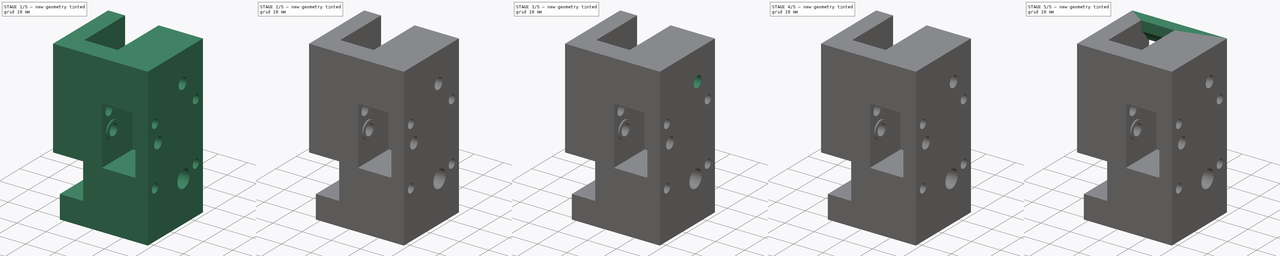
[diagram: build sequence overview — one tinted view per stage of 5, left to right]
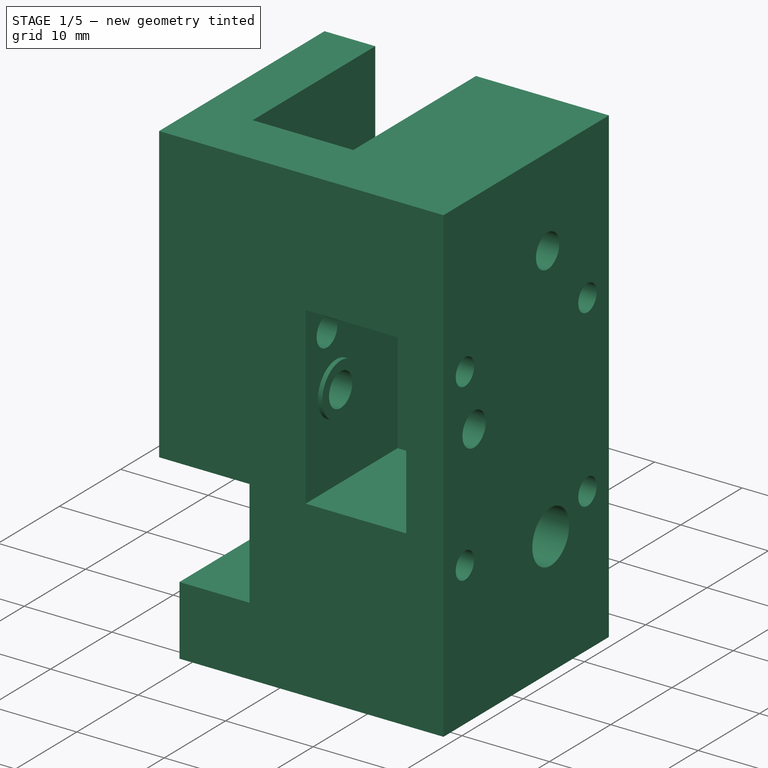
[diagram: stage 1 of 5 — iso view after this stage's code; geometry added in this stage tinted green]
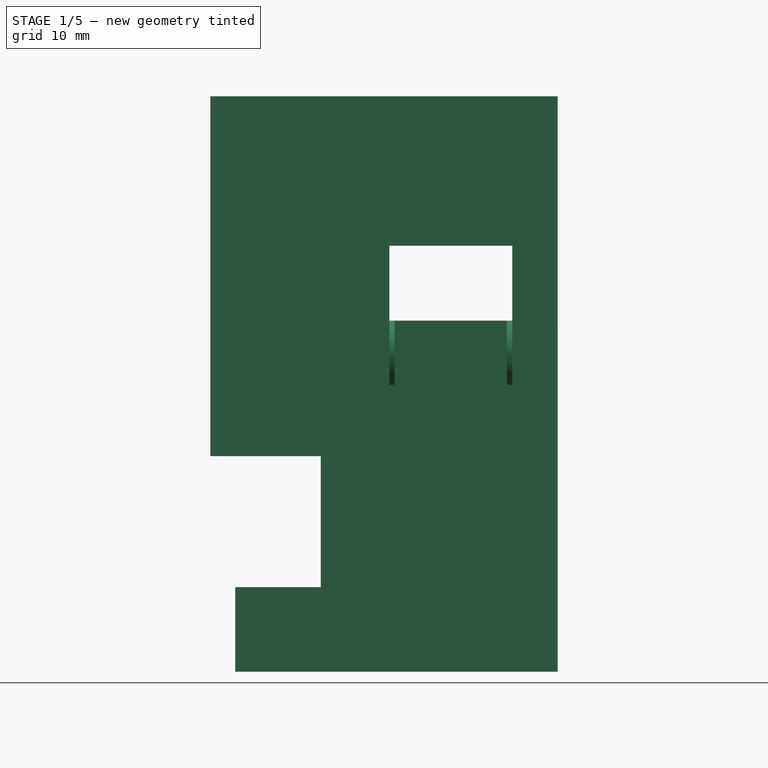
[diagram: stage 1 of 5 — front view after this stage's code; geometry added in this stage tinted green]
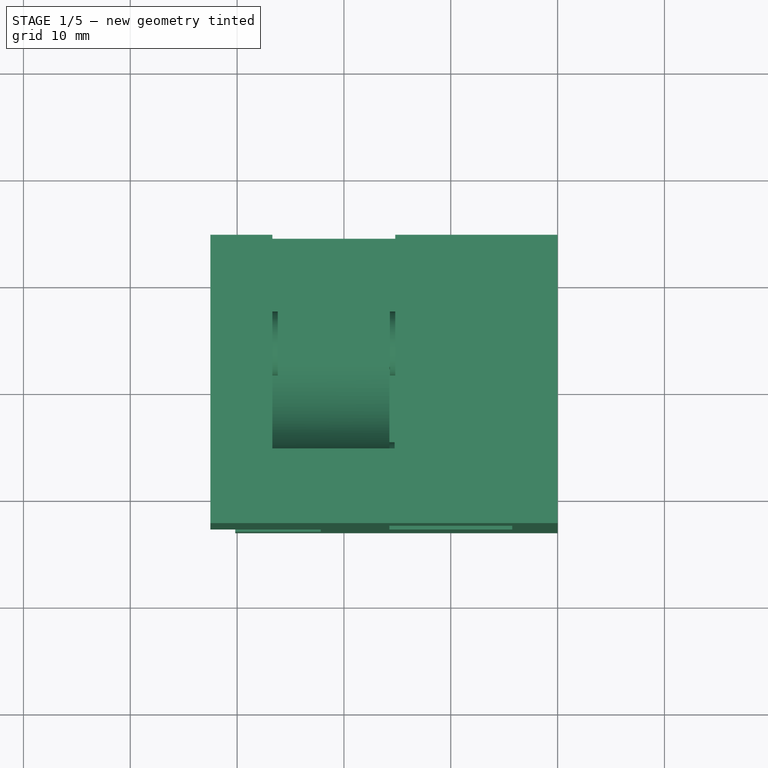
[diagram: stage 1 of 5 — top view after this stage's code; geometry added in this stage tinted green]
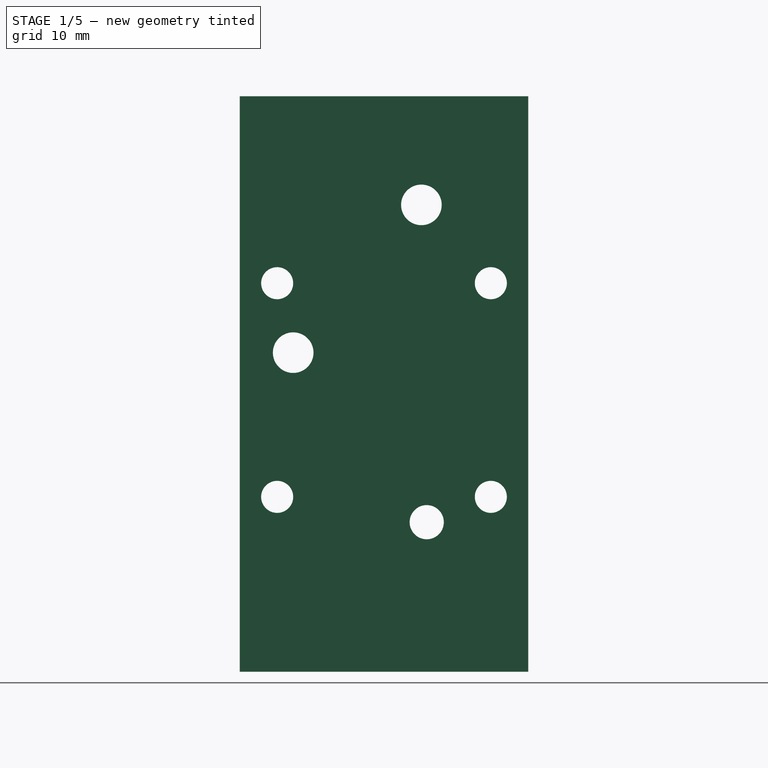
[diagram: stage 1 of 5 — right view after this stage's code; geometry added in this stage tinted green]
FCSTD DOCUMENT  (FreeCAD 1.0R38641 +468 (Git))
Label: k1_joint_right
License: All rights reserved
LicenseURL: https://en.wikipedia.org/wiki/All_rights_reserved
objects: Sketcher::SketchObject×8, PartDesign::Pad×7, PartDesign::Pocket×6, App::Link×3, Part::Feature×1, PartDesign::FeatureBase×1, PartDesign::Line×1, PartDesign::Chamfer×1, PartDesign::Body×1, App::Part×1
note: 63 computed .brp shape members not serialized (recipe doc carries the construction recipe); baked Part::Feature solids carry a one-line shape summary decoded from their .brp
EXTERNAL_REF file=cad_powge_pulley.FCStd obj=Part
EXTERNAL_REF file=cad_mgn12h_block.FCStd obj=Body

FEATURE [Part::Feature] Part__Feature  label="step"
  shape: bbox 32.5 x 27 x 53.87 mm, 57 faces (baked)
FEATURE [PartDesign::FeatureBase] BaseFeature
  BaseFeature = -> Part__Feature
  Suppressed = false
FEATURE [PartDesign::Body] Body  label="k1_joint_right"
  AllowCompound = false
  BaseFeature = -> Part__Feature
  Group = -> [BaseFeature,DatumLine,Sketch,Pad,Pocket,Pocket001,Pocket002,Pad001,Pad002,Sketch001,Pocket003,Sketch002,Pad003,Sketch003,Pad004,Sketch004,Pocket004,Chamfer,Sketch005,Pocket005,Sketch006,Pad005,Sketch007,Pad006]
  Origin = -> Origin
  Tip = -> Pad006
FEATURE [App::Link] Link  label="cad_powge_pulley_top_link"
  LinkPlacement = pos=(14.75,-18,24) rot=(0,1,0;1.5708rad)
  LinkedObject = -> <external cad_powge_pulley.FCStd>#Part
  Placement = pos=(14.75,-18,24) rot=(0,1,0;1.5708rad)
FEATURE [App::Link] Link001  label="cad_powge_pulley_bottom_link"
  LinkPlacement = pos=(3.8,-4.505,37.83) rot=(0,1,0;1.5708rad)
  LinkedObject = -> <external cad_powge_pulley.FCStd>#Part
  Placement = pos=(3.8,-4.505,37.83) rot=(0,1,0;1.5708rad)
FEATURE [App::Link] Link002  label="mgn12_block_link"
  LinkPlacement = pos=(29.9999,-9.5,43.2) rot=(0,1,0;1.5708rad)
  LinkedObject = -> <external cad_mgn12h_block.FCStd>#Body
  Placement = pos=(29.9999,-9.5,43.2) rot=(0,1,0;1.5708rad)
FEATURE [App::Part] Part  label="k1_joint_right_part"
  Group = -> [Part__Feature,Body,Link,Link001,Link002]
  Origin = -> Origin001
  Placement = pos=(0,0,0) rot=(0.57735,-0.57735,0.57735;2.0944rad)

RESOLVED EXTERNAL PARTS (link-assembly join: the EXTERNAL_REF files above that resolve inside this repo's crawl, each included once):
---- part cad_mgn12h_block.FCStd = doc fcstd_671538b6926e ----
FCSTD DOCUMENT  (FreeCAD 1.0R38641 +468 (Git))
Label: cad_mgn12h_block
License: All rights reserved
LicenseURL: https://en.wikipedia.org/wiki/All_rights_reserved
objects: Sketcher::SketchObject×3, PartDesign::Pocket×2, PartDesign::Pad×1, PartDesign::Body×1
note: 16 computed .brp shape members not serialized (recipe doc carries the construction recipe); baked Part::Feature solids carry a one-line shape summary decoded from their .brp

FEATURE [Sketcher::SketchObject] Sketch
  ArcFitTolerance = 0
  AttachmentSupport = -> [YZ_Plane]
  FullyConstrained = true
  MakeInternals = false
  MapMode = 5
  Placement = pos=(0,0,0) rot=(0.57735,0.57735,0.57735;2.0944rad)
  sketch-geometry (4):
    g0: LineSegment StartX=13.5 StartY=0 StartZ=0 EndX=-13.5 EndY=-1e-16 EndZ=0
    g1: LineSegment StartX=-13.5 StartY=-1e-16 StartZ=0 EndX=-13.5 EndY=10 EndZ=0
    g2: LineSegment StartX=-13.5 StartY=10 StartZ=0 EndX=13.5 EndY=10 EndZ=0
    g3: LineSegment StartX=13.5 StartY=10 StartZ=0 EndX=13.5 EndY=0 EndZ=0
  constraints (11):
    c: Coincident(g0,g1)
    c: Coincident(g1,g2)
    c: Coincident(g2,g3)
    c: Coincident(g3,g0)
    c: Horizontal(g2)
    c: Vertical(g1)
    c: Vertical(g3)
    c: PointOnObject(g0,g-1)
    c: Symmetric(g0,g0,g-2)
    c: Distance(g2) = 27
    c: Distance(g1) = 10
FEATURE [PartDesign::Pad] Pad
  Direction = (1,0,0)
  Length = 45.4
  Length2 = 10
  Placement = pos=(0,0,0) rot=(1,1,1;2.0944rad)
  Profile = -> Sketch
  ReferenceAxis = -> Sketch [N_Axis]
  Suppressed = false
  Type = 0
FEATURE [Sketcher::SketchObject] Sketch001
  ArcFitTolerance = 0
  AttachmentSupport = -> [Pad]
  FullyConstrained = true
  MakeInternals = false
  MapMode = 5
  Placement = pos=(0,0,0) rot=(0.707107,0.707107,0;3.14159rad)
  sketch-geometry (8):
    g0: LineSegment [constr] StartX=-10 StartY=32.7 StartZ=0 EndX=10 EndY=32.7 EndZ=0
    g1: LineSegment [constr] StartX=10 StartY=32.7 StartZ=0 EndX=10 EndY=12.7 EndZ=0
    g2: LineSegment [constr] StartX=10 StartY=12.7 StartZ=0 EndX=-10 EndY=12.7 EndZ=0
    g3: LineSegment [constr] StartX=-10 StartY=12.7 StartZ=0 EndX=-10 EndY=32.7 EndZ=0
    g4: Circle CenterX=-10 CenterY=32.7 CenterZ=0 NormalX=0 NormalY=0 NormalZ=1 AngleXU=0 Radius=1.5
    g5: Circle CenterX=10 CenterY=32.7 CenterZ=0 NormalX=0 NormalY=0 NormalZ=1 AngleXU=0 Radius=1.5
    g6: Circle CenterX=10 CenterY=12.7 CenterZ=0 NormalX=0 NormalY=0 NormalZ=1 AngleXU=0 Radius=1.5
    g7: Circle CenterX=-10 CenterY=12.7 CenterZ=0 NormalX=0 NormalY=0 NormalZ=1 AngleXU=0 Radius=1.5
  constraints (19):
    c: Coincident(g0,g1)
    c: Coincident(g1,g2)
    c: Coincident(g2,g3)
    c: Coincident(g3,g0)
    c: Horizontal(g2)
    c: Vertical(g1)
    c: Vertical(g3)
    c: Symmetric(g0,g0,g-2)
    c: Distance(g0) = 20
    c: Distance(g1) = 20
    c: DistanceY(g-1,g2) = 12.7
    c: Coincident(g4,g0)
    c: Coincident(g5,g0)
    c: Coincident(g6,g1)
    c: Coincident(g7,g2)
    c: Equal(g7,g6)
    c: Equal(g6,g5)
    c: Equal(g5,g4)
    c: Radius(g4) = 1.5
FEATURE [PartDesign::Pocket] Pocket
  BaseFeature = -> Pad
  Direction = (0,0,1)
  Length = 5
  Length2 = 5
  Placement = pos=(0,0,0) rot=(1,1,1;2.0944rad)
  Profile = -> Sketch001
  ReferenceAxis = -> Sketch001 [N_Axis]
  Suppressed = false
  Type = 0
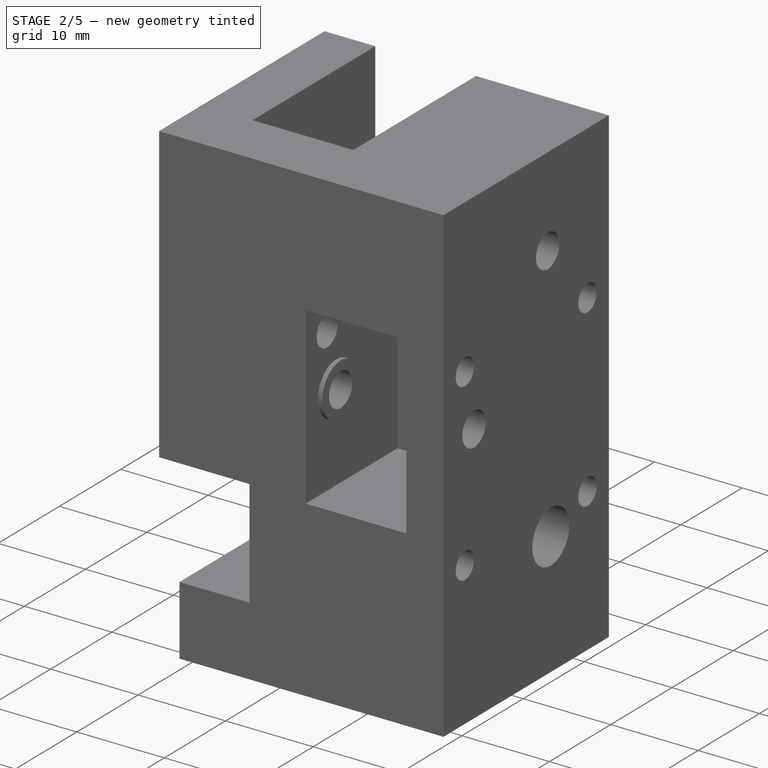
[diagram: stage 2 of 5 — iso view after this stage's code; geometry added in this stage tinted green]
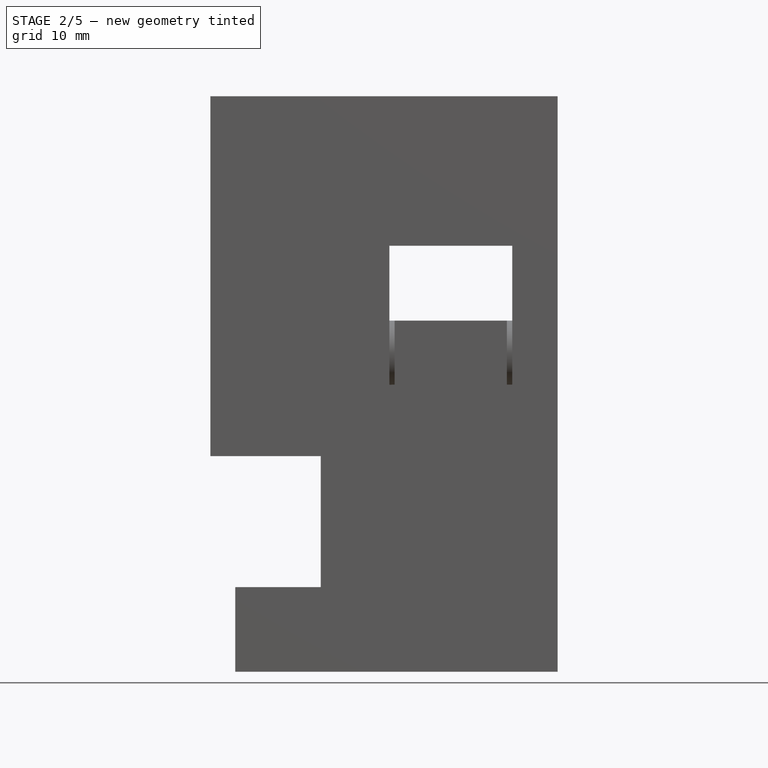
[diagram: stage 2 of 5 — front view after this stage's code; geometry added in this stage tinted green]
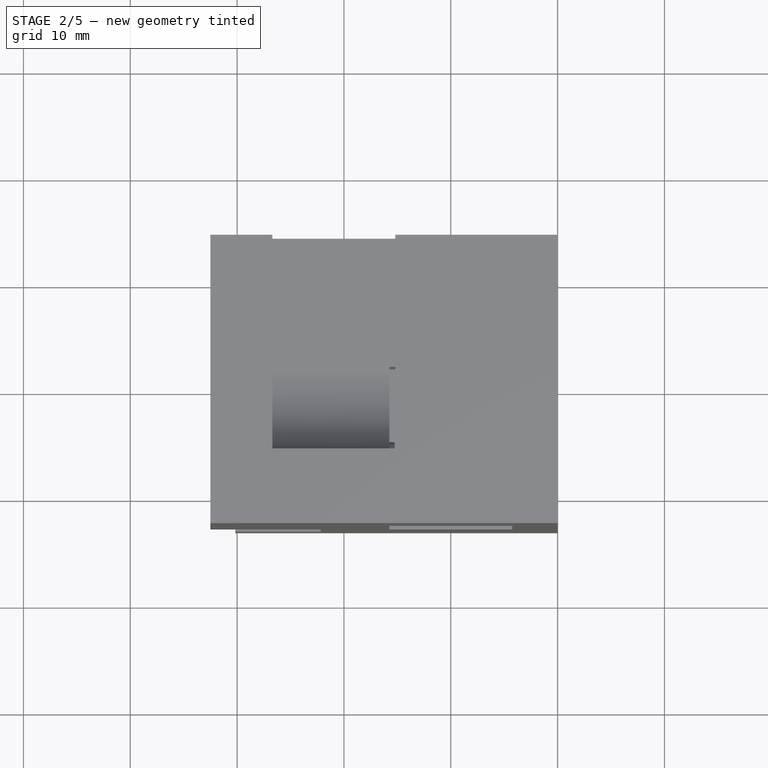
[diagram: stage 2 of 5 — top view after this stage's code; geometry added in this stage tinted green]
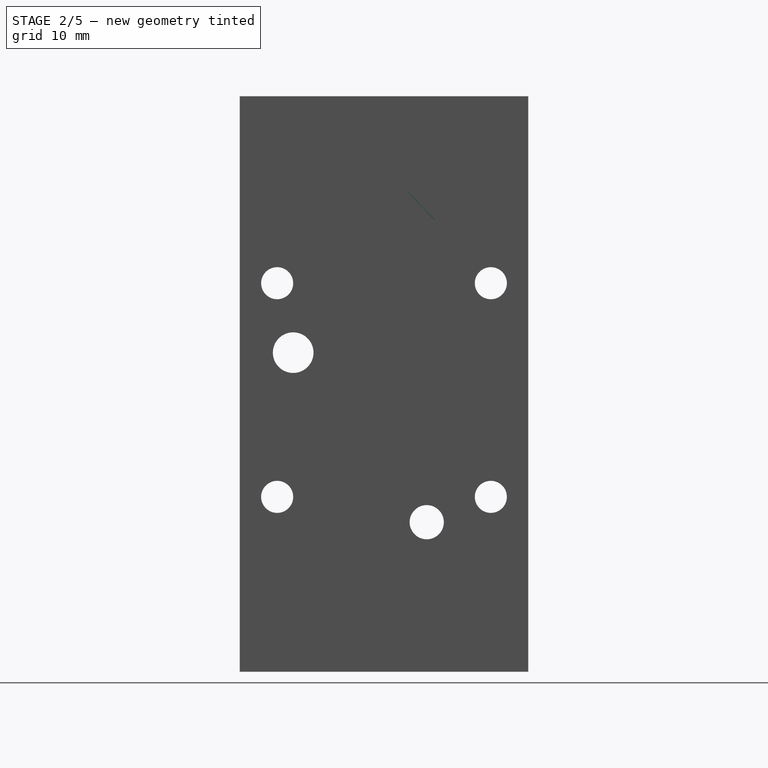
[diagram: stage 2 of 5 — right view after this stage's code; geometry added in this stage tinted green]
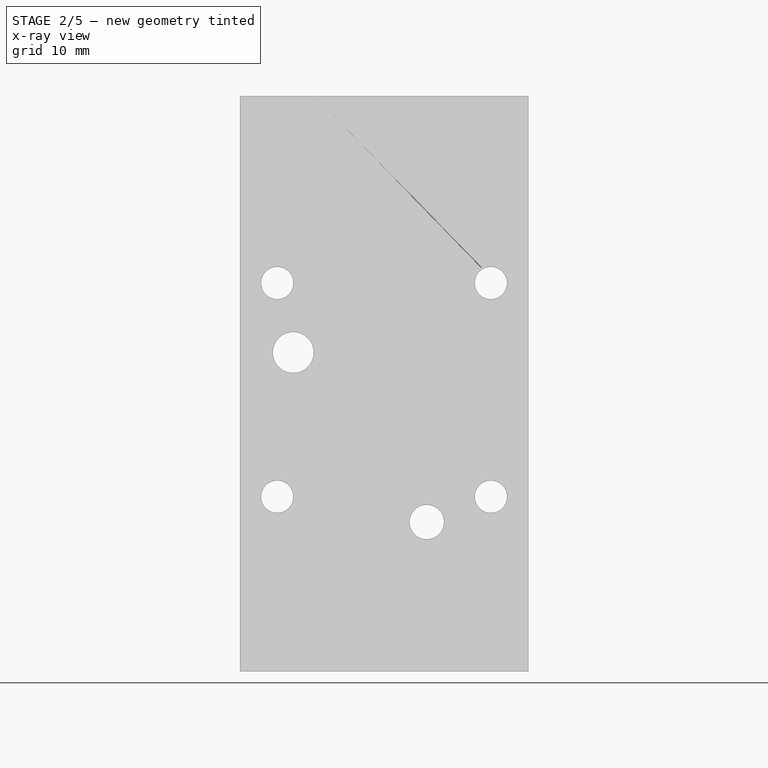
[diagram: stage 2 of 5 — x-ray composite at the right view; earlier geometry ghosted, this stage's added geometry solid]
FEATURE [PartDesign::Line] DatumLine  label="front_idler_axis"
  AttacherType = Attacher::AttachEngineLine
  AttachmentOffset = pos=(-1.495,0,0) rot=(0,0,1;0rad)
  AttachmentSupport = -> [BaseFeature]
  Length = 20
  MapMode = 19
  Placement = pos=(29.9999,-4.505,37.83) rot=(0.57735,-0.57735,-0.57735;2.0944rad)
  ResizeMode = 0
FEATURE [Sketcher::SketchObject] Sketch
  ArcFitTolerance = 1e-06
  AttachmentSupport = -> [BaseFeature]
  ExternalGeometry = -> [BaseFeature]
  FullyConstrained = true
  MakeInternals = false
  MapMode = 5
  Placement = pos=(3.3,0,0) rot=(0.57735,0.57735,0.57735;2.0944rad)
  sketch-geometry (6):
    g0: LineSegment StartX=-17 StartY=48 StartZ=0 EndX=-16 EndY=48 EndZ=0
    g1: LineSegment StartX=-17 StartY=48 StartZ=0 EndX=-17 EndY=35 EndZ=0
    g2: LineSegment StartX=-9 StartY=27 StartZ=0 EndX=-8 EndY=27 EndZ=0
    g3: LineSegment StartX=-16 StartY=48 StartZ=0 EndX=-16 EndY=35 EndZ=0
    g4: ArcOfCircle CenterX=-9 CenterY=35 CenterZ=0 NormalX=0 NormalY=0 NormalZ=1 AngleXU=0 Radius=8 StartAngle=3.14159 EndAngle=4.71239
    g5: ArcOfCircle CenterX=-8 CenterY=35 CenterZ=0 NormalX=0 NormalY=0 NormalZ=1 AngleXU=0 Radius=8 StartAngle=3.14159 EndAngle=4.71239
  constraints (15):
    c: Coincident(g0,g-4)
    c: PointOnObject(g0,g-4)
    c: Coincident(g3,g0)
    c: Vertical(g3)
    c: PointOnObject(g2,g-6)
    c: Distance(g0,g0) = 1
    c: Coincident(g2,g-6)
    c: Equal(g1,g3)
    c: Coincident(g1,g-5)
    c: Coincident(g4,g1)
    c: Coincident(g4,g2)
    c: Radius(g4) = 8
    c: Tangent(g5,g2) = -1.5708
    c: Tangent(g5,g3) = -1.5708
    c: Coincident(g0,g1)
FEATURE [PartDesign::Pad] Pad
  BaseFeature = -> BaseFeature
  Direction = (1,0,0)
  Length = 10
  Length2 = 10
  Profile = -> Sketch
  ReferenceAxis = -> Sketch [N_Axis]
  Refine = true
  Suppressed = false
  Type = 3
  UpToFace = -> BaseFeature [Face15]
FEATURE [PartDesign::Pocket] Pocket
  BaseFeature = -> Pad
  Direction = (-1,0,0)
  Length = 0
  Length2 = 5
  Profile = -> Pad [Face49]
  Refine = true
  Suppressed = false
  Type = 3
  UpToFace = -> Pad [Face23]
FEATURE [PartDesign::Pocket] Pocket001
  BaseFeature = -> Pocket
  Direction = (1,0,0)
  Length = 0
  Length2 = 5
  Profile = -> Pocket [Face29]
  Refine = true
  Suppressed = false
  Type = 3
  UpToFace = -> Pocket [Face15]
FEATURE [PartDesign::Pocket] Pocket002
  BaseFeature = -> Pocket001
  Direction = (-1,0,0)
  Length = 0
  Length2 = 5
  Profile = -> Pocket001 [Face46]
  Refine = true
  Suppressed = false
  Type = 3
  UpToFace = -> Pocket001 [Face16]
FEATURE [PartDesign::Pad] Pad001
  BaseFeature = -> Pocket002
  Direction = (1,0,0)
  Length = 10
  Length2 = 10
  Profile = -> Pocket002 [Edge74]
  Refine = true
  Suppressed = false
  Type = 3
  UpToFace = -> Pocket002 [Face53]
FEATURE [Sketcher::SketchObject] Sketch002
  ArcFitTolerance = 0
  AttachmentSupport = -> [Pocket]
  ExternalGeometry = -> [Pocket]
  FullyConstrained = true
  MakeInternals = false
  MapMode = 5
  Placement = pos=(0,0,0) rot=(0.57735,0.57735,-0.57735;4.18879rad)
  sketch-geometry (4):
    g0: LineSegment StartX=-6 StartY=-10 StartZ=0 EndX=6 EndY=-10 EndZ=0
    g1: LineSegment StartX=6 StartY=-10 StartZ=0 EndX=6 EndY=-5 EndZ=0
    g2: LineSegment StartX=6 StartY=-5 StartZ=0 EndX=-6 EndY=-5 EndZ=0
    g3: LineSegment StartX=-6 StartY=-5 StartZ=0 EndX=-6 EndY=-10 EndZ=0
  constraints (11):
    c: Coincident(g0,g1)
    c: Coincident(g1,g2)
    c: Coincident(g2,g3)
    c: Coincident(g3,g0)
    c: Horizontal(g0)
    c: Vertical(g1)
    c: Vertical(g3)
    c: PointOnObject(g0,g-3)
    c: Symmetric(g2,g1,g-2)
    c: Distance(g1) = 5
    c: Distance(g2) = 12
FEATURE [PartDesign::Pocket] Pocket001
  BaseFeature = -> Pocket
  Direction = (1,0,0)
  Length = 5
  Length2 = 5
  Placement = pos=(0,0,0) rot=(1,1,1;2.0944rad)
  Profile = -> Sketch002
  ReferenceAxis = -> Sketch002 [N_Axis]
  Suppressed = false
  Type = 1
FEATURE [PartDesign::Body] Body  label="mgn12h_block"
  AllowCompound = false
  Group = -> [Sketch,Pad,Sketch001,Pocket,Sketch002,Pocket001]
  Origin = -> Origin
  Placement = pos=(0,13.5,0) rot=(0,0,1;0rad)
  Tip = -> Pocket001
---- part cad_powge_pulley.FCStd = doc fcstd_d49da9a9e340 ----
FCSTD DOCUMENT  (FreeCAD 1.0R38641 +468 (Git))
Label: cad_powge_pulley
License: All rights reserved
LicenseURL: https://en.wikipedia.org/wiki/All_rights_reserved
objects: Sketcher::SketchObject×1, PartDesign::Revolution×1, PartDesign::Body×1, App::Part×1
note: 6 computed .brp shape members not serialized (recipe doc carries the construction recipe); baked Part::Feature solids carry a one-line shape summary decoded from their .brp

FEATURE [Sketcher::SketchObject] Sketch
  ArcFitTolerance = 1e-06
  AttachmentSupport = -> [XZ_Plane]
  FullyConstrained = true
  MakeInternals = false
  MapMode = 5
  Placement = pos=(0,0,0) rot=(1,0,0;1.5708rad)
  sketch-geometry (8):
    g0: LineSegment StartX=6.1 StartY=9.3 StartZ=0 EndX=6.1 EndY=1.2 EndZ=0
    g1: LineSegment StartX=6.1 StartY=1.2 StartZ=0 EndX=8 EndY=1.2 EndZ=0
    g2: LineSegment StartX=8 StartY=1.2 StartZ=0 EndX=8 EndY=0 EndZ=0
    g3: LineSegment StartX=8 StartY=0 StartZ=0 EndX=2 EndY=0 EndZ=0
    g4: LineSegment StartX=2 StartY=0 StartZ=0 EndX=2 EndY=10.5 EndZ=0
    g5: LineSegment StartX=2 StartY=10.5 StartZ=0 EndX=8 EndY=10.5 EndZ=0
    g6: LineSegment StartX=8 StartY=10.5 StartZ=0 EndX=8 EndY=9.3 EndZ=0
    g7: LineSegment StartX=8 StartY=9.3 StartZ=0 EndX=6.1 EndY=9.3 EndZ=0
  constraints (24):
    c: Vertical(g0)
    c: Coincident(g1,g0)
    c: Horizontal(g1)
    c: Coincident(g2,g1)
    c: PointOnObject(g2,g-1)
    c: Vertical(g2)
    c: Coincident(g3,g2)
    c: PointOnObject(g3,g-1)
    c: Coincident(g4,g3)
    c: Vertical(g4)
    c: Coincident(g5,g4)
    c: Horizontal(g5)
    c: Coincident(g6,g5)
    c: Vertical(g6)
    c: Coincident(g7,g6)
    c: Horizontal(g7)
    c: Coincident(g0,g7)
    c: Equal(g5,g3)
    c: Equal(g6,g2)
    c: Distance(g4,g-2) = 2
    c: Distance(g5,g-2) = 8
    c: DistanceY(g0,g0) = 8.1
    c: DistanceY(g4,g4) = 10.5
    c: Distance(g0,g-2) = 6.1
FEATURE [PartDesign::Revolution] Revolution
  Angle = 360
  Angle2 = 60
  Axis = (0,2e-16,1)
  Base = (0,0,0)
  Placement = pos=(0,0,0) rot=(1,0,0;1.5708rad)
  Profile = -> Sketch
  ReferenceAxis = -> Sketch [V_Axis]
  Refine = true
  Reversed = true
  Suppressed = false
  Type = 0
FEATURE [PartDesign::Body] Body  label="powge_pulley"
  AllowCompound = false
  Group = -> [Sketch,Revolution]
  Origin = -> Origin
  Tip = -> Revolution
FEATURE [App::Part] Part  label="powge_pulley_part"
  Group = -> [Body]
  Origin = -> Origin001
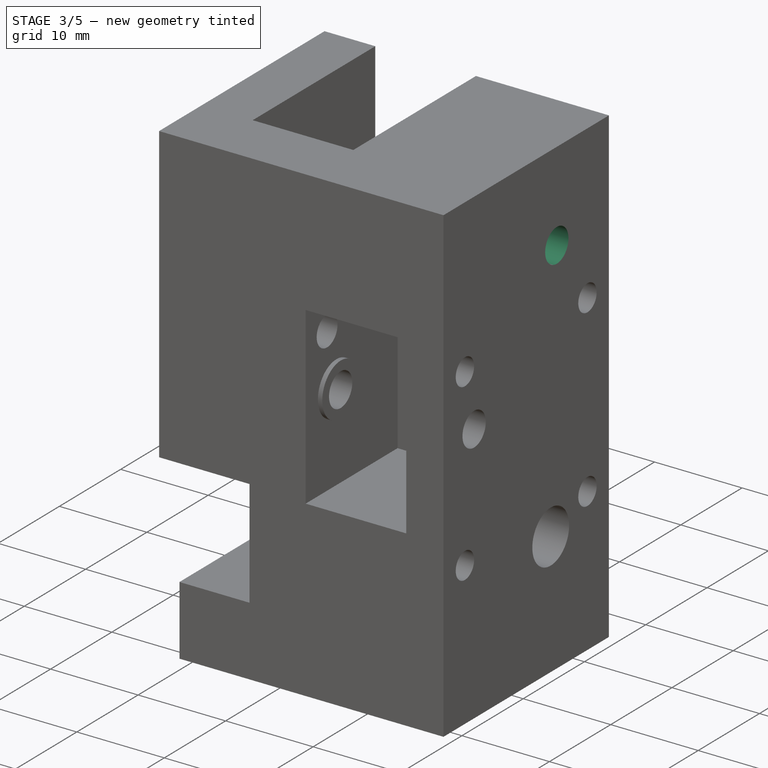
[diagram: stage 3 of 5 — iso view after this stage's code; geometry added in this stage tinted green]
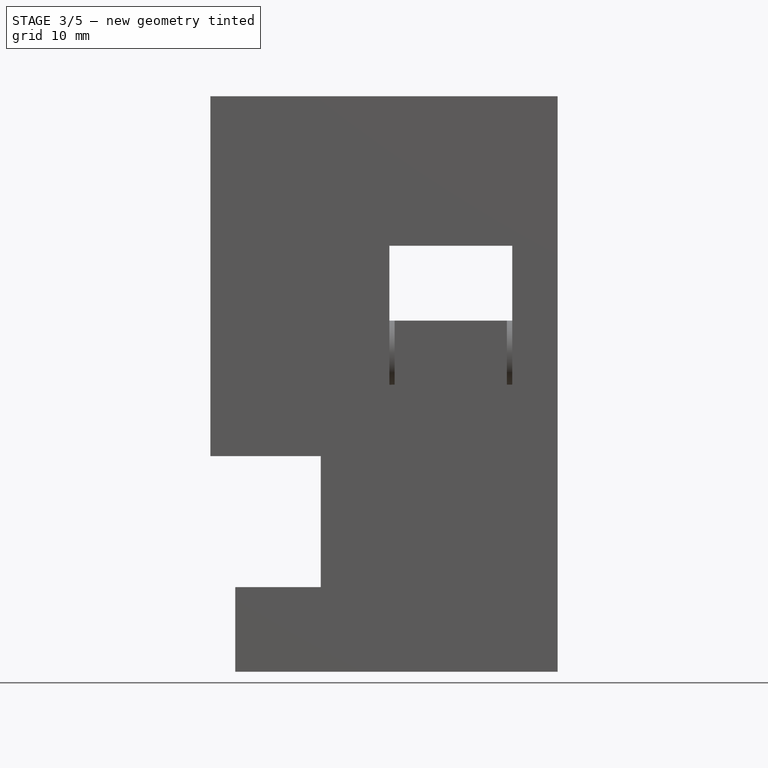
[diagram: stage 3 of 5 — front view after this stage's code; geometry added in this stage tinted green]
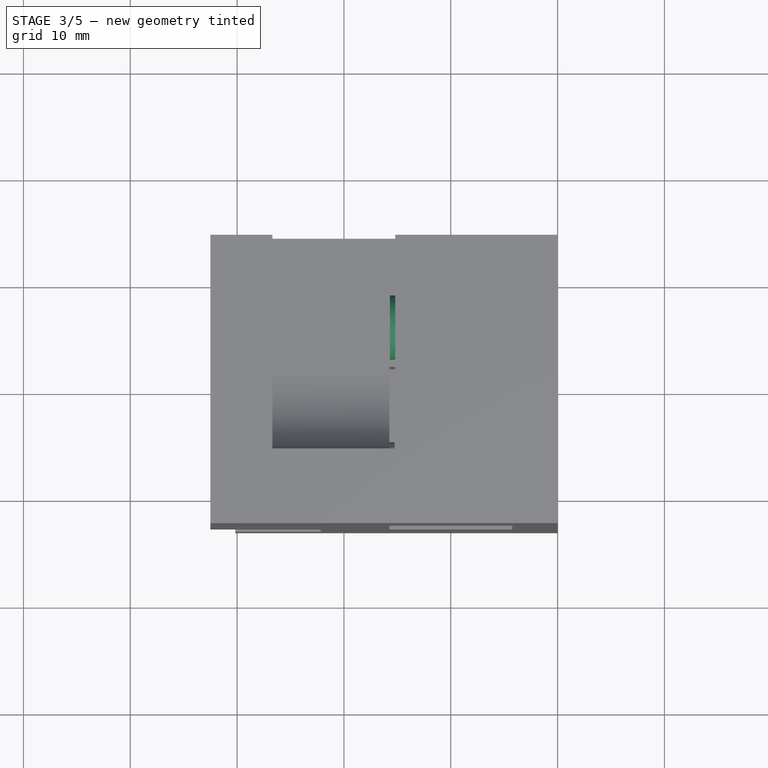
[diagram: stage 3 of 5 — top view after this stage's code; geometry added in this stage tinted green]
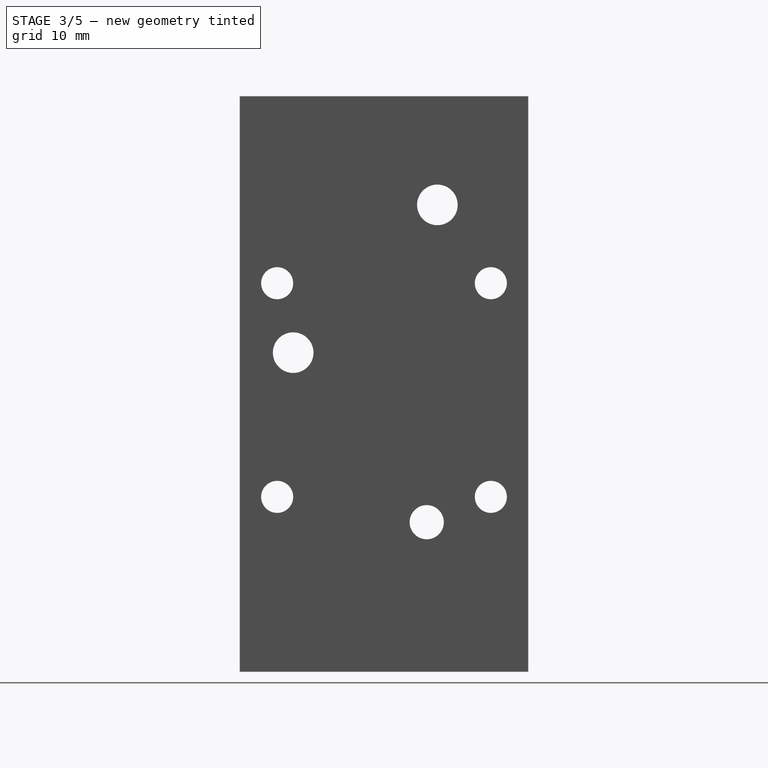
[diagram: stage 3 of 5 — right view after this stage's code; geometry added in this stage tinted green]
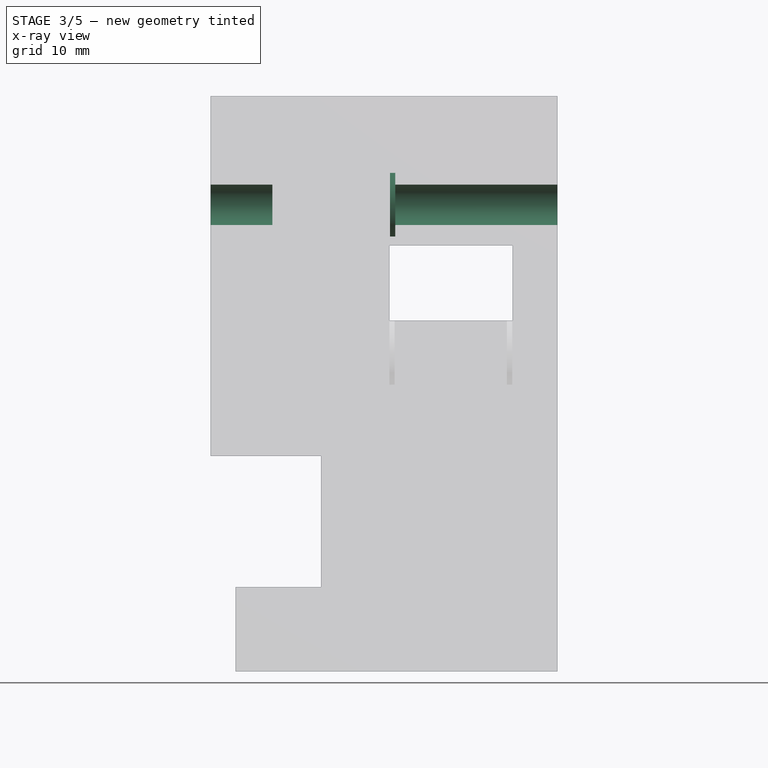
[diagram: stage 3 of 5 — x-ray composite at the front view; earlier geometry ghosted, this stage's added geometry solid]
FEATURE [PartDesign::Pad] Pad002
  BaseFeature = -> Pad001
  Direction = (1,0,0)
  Length = 10
  Length2 = 10
  Profile = -> Pad001 [Edge52]
  Refine = true
  Suppressed = false
  Type = 3
  UpToFace = -> Pad001 [Face10]
FEATURE [Sketcher::SketchObject] Sketch001
  ArcFitTolerance = 1e-06
  AttachmentSupport = -> [Pad002]
  ExternalGeometry = -> [DatumLine]
  FullyConstrained = true
  MakeInternals = false
  MapMode = 5
  Placement = pos=(-2.5,0,0) rot=(0.57735,-0.57735,-0.57735;2.0944rad)
  sketch-geometry (1):
    g0: Circle CenterX=4.505 CenterY=37.83 CenterZ=0 NormalX=0 NormalY=0 NormalZ=1 AngleXU=0 Radius=1.9
  constraints (2):
    c: Coincident(g0,g-3)
    c: Diameter(g0) = 3.8
FEATURE [PartDesign::Pocket] Pocket003
  BaseFeature = -> Pad002
  Direction = (1,0,0)
  Length = 5
  Length2 = 5
  Profile = -> Sketch001
  ReferenceAxis = -> Sketch001 [N_Axis]
  Refine = true
  Suppressed = false
  Type = 1
FEATURE [Sketcher::SketchObject] Sketch002
  ArcFitTolerance = 1e-06
  AttachmentSupport = -> [Pocket003]
  ExternalGeometry = -> [DatumLine]
  FullyConstrained = true
  MakeInternals = false
  MapMode = 5
  Placement = pos=(14.8,0,0) rot=(0.57735,-0.57735,-0.57735;2.0944rad)
  sketch-geometry (2):
    g0: Circle CenterX=4.505 CenterY=37.83 CenterZ=0 NormalX=0 NormalY=0 NormalZ=1 AngleXU=0 Radius=1.9
    g1: Circle CenterX=4.505 CenterY=37.83 CenterZ=0 NormalX=0 NormalY=0 NormalZ=1 AngleXU=0 Radius=3
  constraints (4):
    c: Coincident(g0,g-3)
    c: Coincident(g1,g0)
    c: Diameter(g1) = 6
    c: Diameter(g0) = 3.8
FEATURE [PartDesign::Pad] Pad003
  BaseFeature = -> Pocket003
  Direction = (-1,0,0)
  Length = 0.5
  Length2 = 10
  Profile = -> Sketch002
  ReferenceAxis = -> Sketch002 [N_Axis]
  Refine = true
  Suppressed = false
  Type = 0
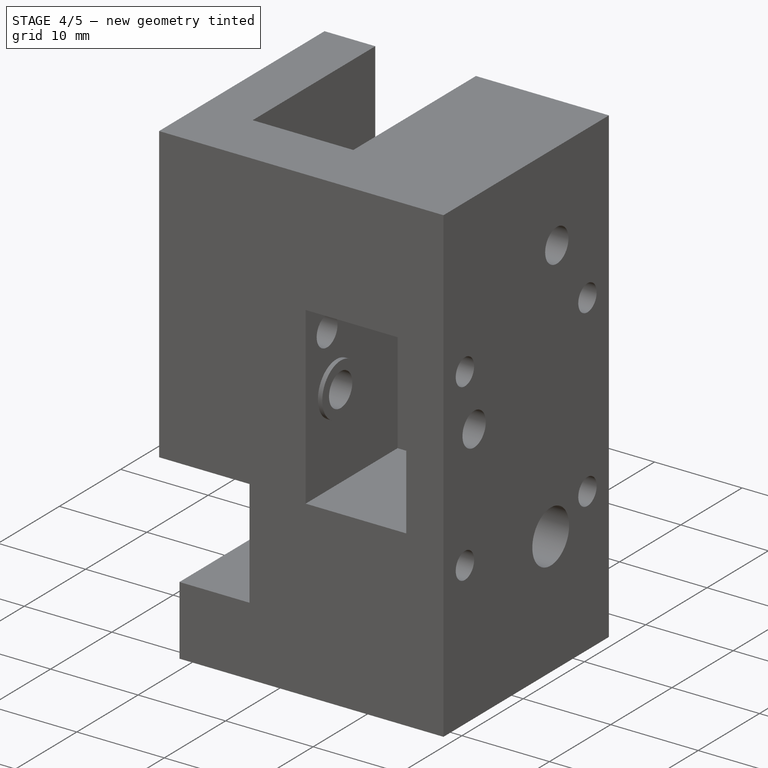
[diagram: stage 4 of 5 — iso view after this stage's code; geometry added in this stage tinted green]
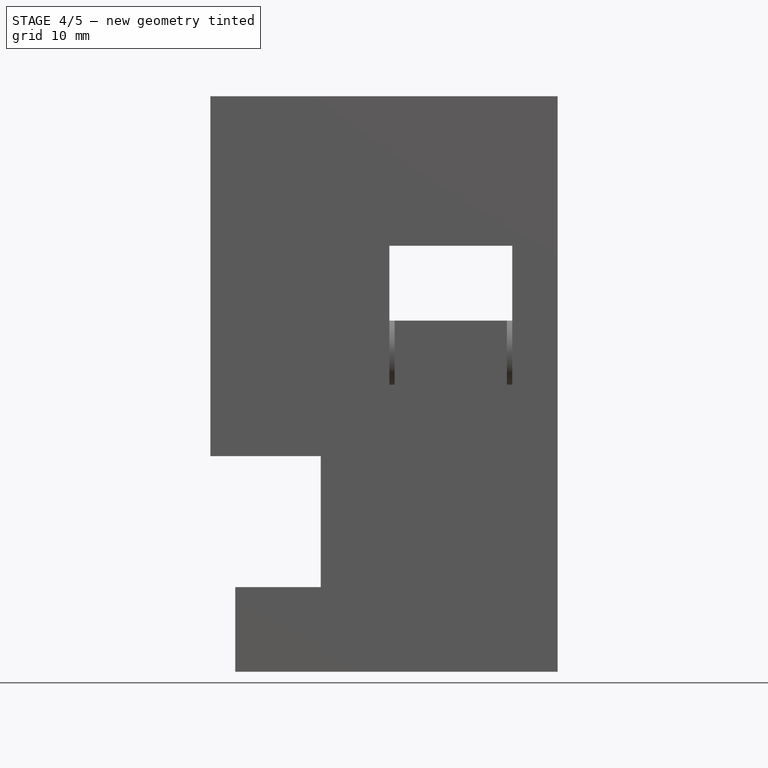
[diagram: stage 4 of 5 — front view after this stage's code; geometry added in this stage tinted green]
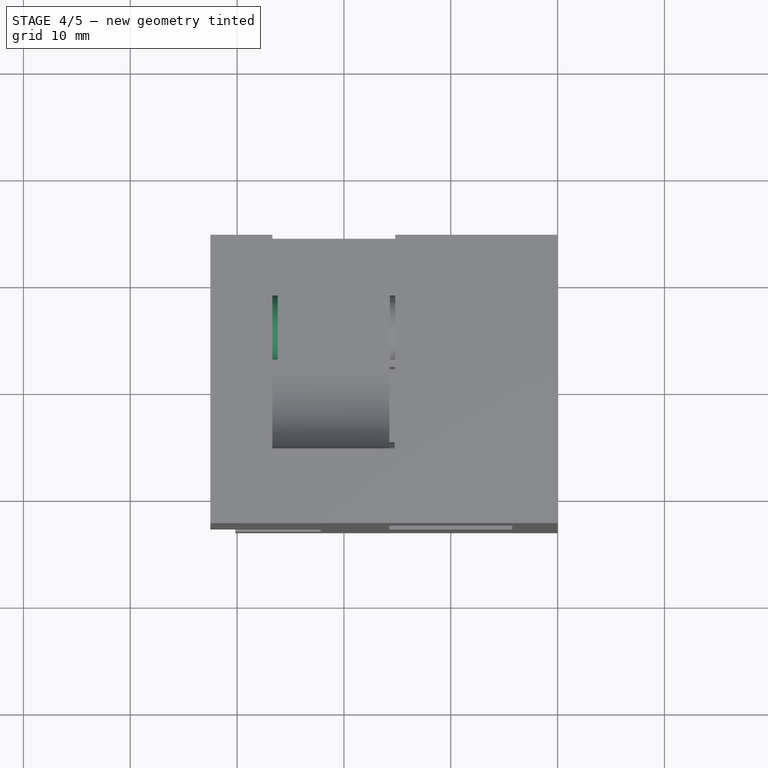
[diagram: stage 4 of 5 — top view after this stage's code; geometry added in this stage tinted green]
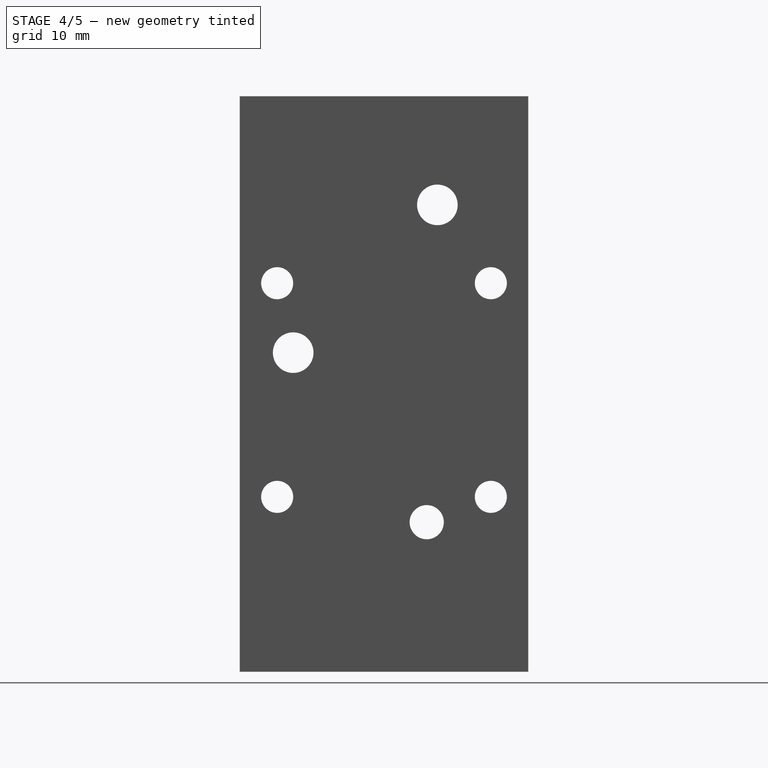
[diagram: stage 4 of 5 — right view after this stage's code; geometry added in this stage tinted green]
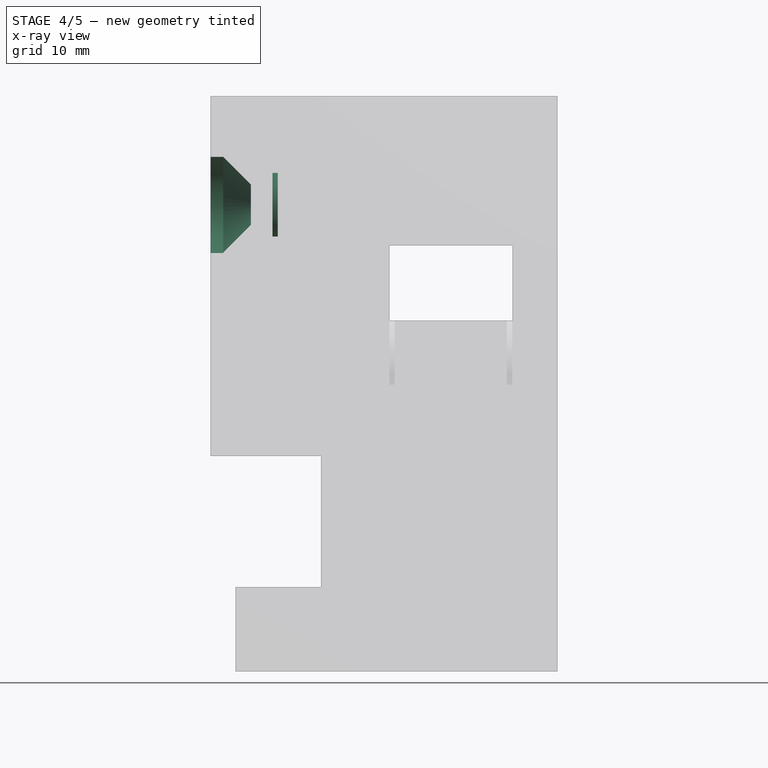
[diagram: stage 4 of 5 — x-ray composite at the front view; earlier geometry ghosted, this stage's added geometry solid]
FEATURE [Sketcher::SketchObject] Sketch003
  ArcFitTolerance = 1e-06
  AttachmentSupport = -> [Pad003]
  ExternalGeometry = -> [DatumLine]
  FullyConstrained = true
  MakeInternals = false
  MapMode = 5
  Placement = pos=(3.3,0,0) rot=(0.57735,0.57735,0.57735;2.0944rad)
  sketch-geometry (2):
    g0: Circle CenterX=-4.505 CenterY=37.83 CenterZ=0 NormalX=0 NormalY=0 NormalZ=1 AngleXU=0 Radius=3
    g1: Circle CenterX=-4.505 CenterY=37.83 CenterZ=0 NormalX=0 NormalY=0 NormalZ=1 AngleXU=0 Radius=1.9
  constraints (4):
    c: Coincident(g0,g-3)
    c: Coincident(g1,g0)
    c: Diameter(g0) = 6
    c: Diameter(g1) = 3.8
FEATURE [PartDesign::Pad] Pad004
  BaseFeature = -> Pad003
  Direction = (1,0,0)
  Length = 0.5
  Length2 = 10
  Profile = -> Sketch003
  ReferenceAxis = -> Sketch003 [N_Axis]
  Refine = true
  Suppressed = false
  Type = 0
FEATURE [Sketcher::SketchObject] Sketch004
  ArcFitTolerance = 1e-06
  AttachmentSupport = -> [Pad004]
  ExternalGeometry = -> [DatumLine]
  FullyConstrained = true
  MakeInternals = false
  MapMode = 5
  Placement = pos=(-2.5,0,0) rot=(0.57735,-0.57735,-0.57735;2.0944rad)
  sketch-geometry (1):
    g0: Circle CenterX=4.505 CenterY=37.83 CenterZ=0 NormalX=0 NormalY=0 NormalZ=1 AngleXU=0 Radius=4.5
  constraints (2):
    c: Coincident(g0,g-3)
    c: Diameter(g0) = 9
FEATURE [PartDesign::Pocket] Pocket004
  BaseFeature = -> Pad004
  Direction = (1,0,0)
  Length = 1.2
  Length2 = 5
  Profile = -> Sketch004
  ReferenceAxis = -> Sketch004 [N_Axis]
  Refine = true
  Suppressed = false
  Type = 0
FEATURE [PartDesign::Chamfer] Chamfer
  Angle = 45
  Base = -> Pocket004 [Edge91]
  BaseFeature = -> Pocket004
  ChamferType = 0
  FlipDirection = false
  Refine = true
  Size = 2.59
  Size2 = 1
  SupportTransform = false
  Suppressed = false
  UseAllEdges = false
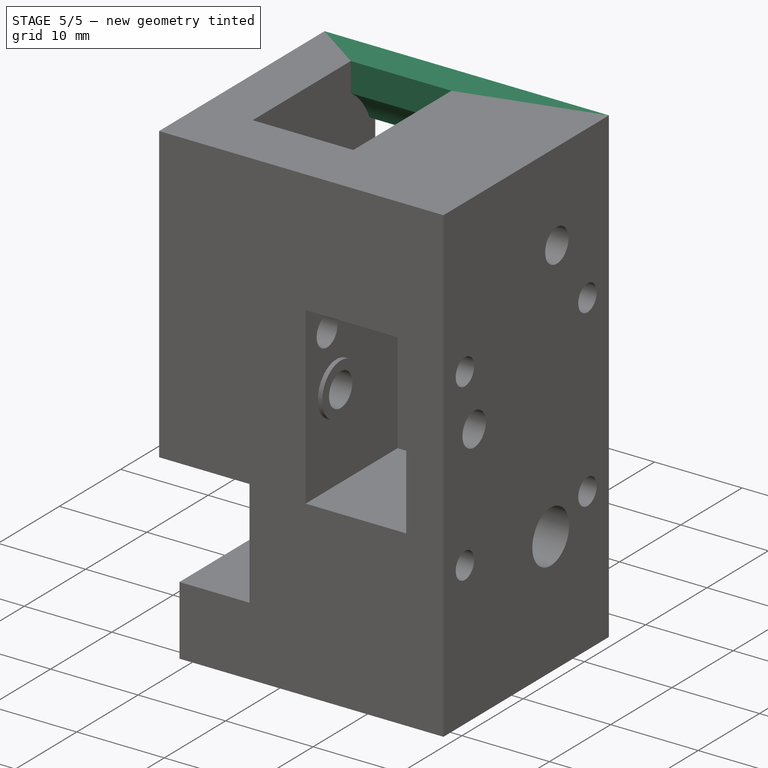
[diagram: stage 5 of 5 — iso view after this stage's code; geometry added in this stage tinted green]
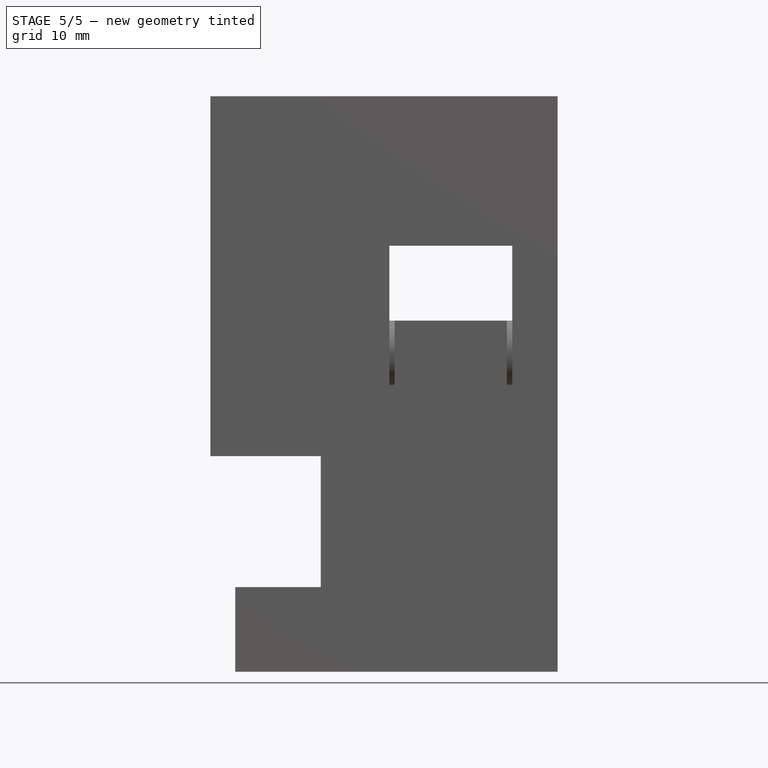
[diagram: stage 5 of 5 — front view after this stage's code; geometry added in this stage tinted green]
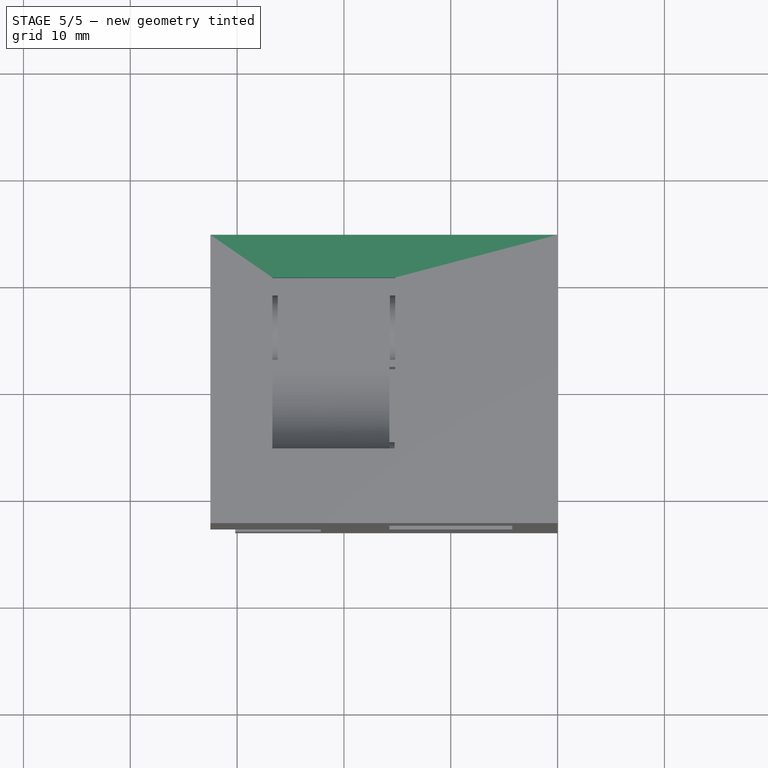
[diagram: stage 5 of 5 — top view after this stage's code; geometry added in this stage tinted green]
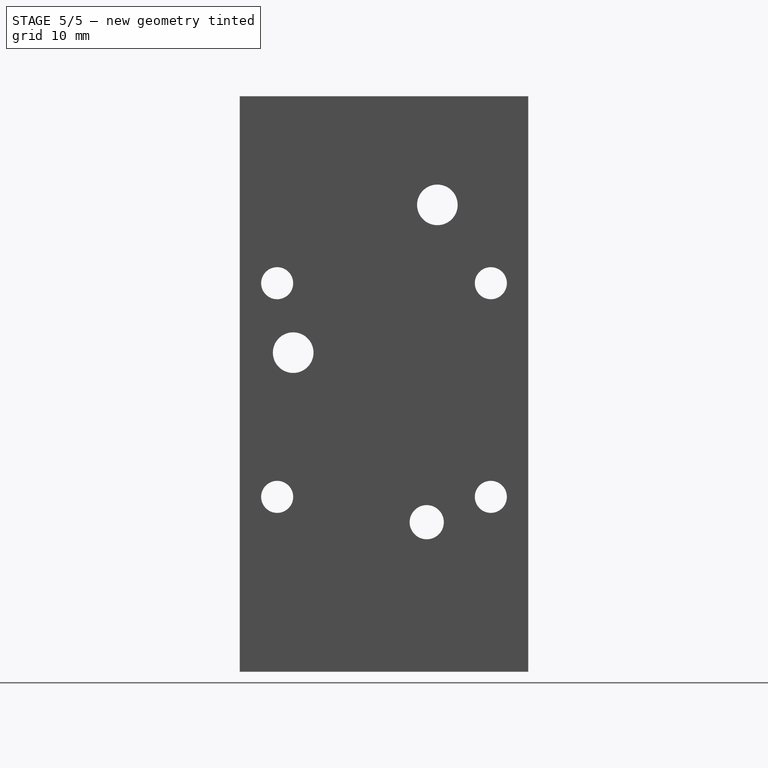
[diagram: stage 5 of 5 — right view after this stage's code; geometry added in this stage tinted green]
FEATURE [Sketcher::SketchObject] Sketch005
  ArcFitTolerance = 1e-06
  AttachmentSupport = -> [Chamfer]
  ExternalGeometry = -> [Chamfer]
  FullyConstrained = true
  MakeInternals = false
  MapMode = 5
  Placement = pos=(14.8,0,0) rot=(0.57735,-0.57735,-0.57735;2.0944rad)
  sketch-geometry (3):
    g0: ArcOfCircle CenterX=4 CenterY=42 CenterZ=0 NormalX=0 NormalY=0 NormalZ=1 AngleXU=0 Radius=8 StartAngle=3.14159 EndAngle=4.71239
    g1: LineSegment StartX=-4 StartY=34 StartZ=0 EndX=4 EndY=34 EndZ=0
    g2: LineSegment StartX=-4 StartY=34 StartZ=0 EndX=-4 EndY=42 EndZ=0
  constraints (7):
    c: Tangent(g0,g-3) = -1.5708
    c: Tangent(g0,g-4) = 1.5708
    c: Radius(g0) = 8
    c: Coincident(g1,g-4)
    c: Coincident(g1,g0)
    c: Coincident(g2,g1)
    c: Tangent(g2,g0) = 1.5708
FEATURE [PartDesign::Pocket] Pocket005
  BaseFeature = -> Chamfer
  Direction = (1,0,0)
  Length = 0
  Length2 = 5
  Profile = -> Sketch005
  ReferenceAxis = -> Sketch005 [N_Axis]
  Refine = true
  Suppressed = false
  Type = 3
  UpToFace = -> Chamfer [Face23]
FEATURE [Sketcher::SketchObject] Sketch006
  ArcFitTolerance = 1e-06
  AttachmentSupport = -> [Pocket005]
  ExternalGeometry = -> [Pocket005,DatumLine]
  FullyConstrained = true
  MakeInternals = false
  MapMode = 5
  Placement = pos=(3.3,0,0) rot=(0.57735,0.57735,0.57735;2.0944rad)
  sketch-geometry (5):
    g0: LineSegment StartX=0 StartY=48 StartZ=0 EndX=4 EndY=48 EndZ=0
    g1: LineSegment StartX=4 StartY=48 StartZ=0 EndX=4 EndY=42 EndZ=0
    g2: LineSegment StartX=0 StartY=48 StartZ=0 EndX=0 EndY=44.6816 EndZ=0
    g3: LineSegment StartX=4 StartY=42 StartZ=0 EndX=2.55553 EndY=42 EndZ=0
    g4: ArcOfCircle CenterX=-4.505 CenterY=37.83 CenterZ=0 NormalX=0 NormalY=0 NormalZ=1 AngleXU=0 Radius=8.2 StartAngle=0.533484 EndAngle=0.989162
  constraints (13):
    c: PointOnObject(g0,g-3)
    c: Coincident(g0,g-4)
    c: Coincident(g1,g0)
    c: Coincident(g2,g0)
    c: Vertical(g2)
    c: Coincident(g3,g1)
    c: Horizontal(g3)
    c: Distance(g0,g-3) = 16
    c: Coincident(g4,g-5)
    c: Coincident(g4,g2)
    c: Coincident(g4,g3)
    c: Radius(g4) = 8.2
    c: Coincident(g1,g-6)
FEATURE [PartDesign::Pad] Pad005
  BaseFeature = -> Pocket005
  Direction = (1,0,0)
  Length = 10
  Length2 = 10
  Profile = -> Sketch006
  ReferenceAxis = -> Sketch006 [N_Axis]
  Refine = true
  Suppressed = false
  Type = 3
  UpToFace = -> Pocket005 [Face22]
FEATURE [Sketcher::SketchObject] Sketch007
  ArcFitTolerance = 1e-06
  AttachmentSupport = -> [Pad005]
  ExternalGeometry = -> [Pad005]
  FullyConstrained = true
  MakeInternals = false
  MapMode = 5
  Placement = pos=(3.3,0,0) rot=(0.57735,0.57735,0.57735;2.0944rad)
  sketch-geometry (4):
    g0: LineSegment StartX=4 StartY=42 StartZ=0 EndX=4 EndY=41 EndZ=0
    g1: LineSegment StartX=4 StartY=42 StartZ=0 EndX=2.55553 EndY=42 EndZ=0
    g2: LineSegment StartX=4 StartY=41 StartZ=0 EndX=3.05748 EndY=41 EndZ=0
    g3: ArcOfCircle CenterX=-4.505 CenterY=37.83 CenterZ=0 NormalX=0 NormalY=0 NormalZ=1 AngleXU=0 Radius=8.2 StartAngle=0.396926 EndAngle=0.533484
  constraints (10):
    c: Coincident(g0,g-4)
    c: PointOnObject(g0,g-4)
    c: Coincident(g1,g0)
    c: Coincident(g1,g-5)
    c: Coincident(g2,g0)
    c: Horizontal(g2)
    c: Coincident(g3,g-5)
    c: Coincident(g3,g1)
    c: Coincident(g3,g2)
    c: Distance(g0,g0) = 1
FEATURE [PartDesign::Pad] Pad006
  BaseFeature = -> Pad005
  Direction = (1,0,0)
  Length = 10
  Length2 = 10
  Profile = -> Sketch007
  ReferenceAxis = -> Sketch007 [N_Axis]
  Refine = true
  Suppressed = false
  Type = 3
  UpToFace = -> Pad005 [Face3]
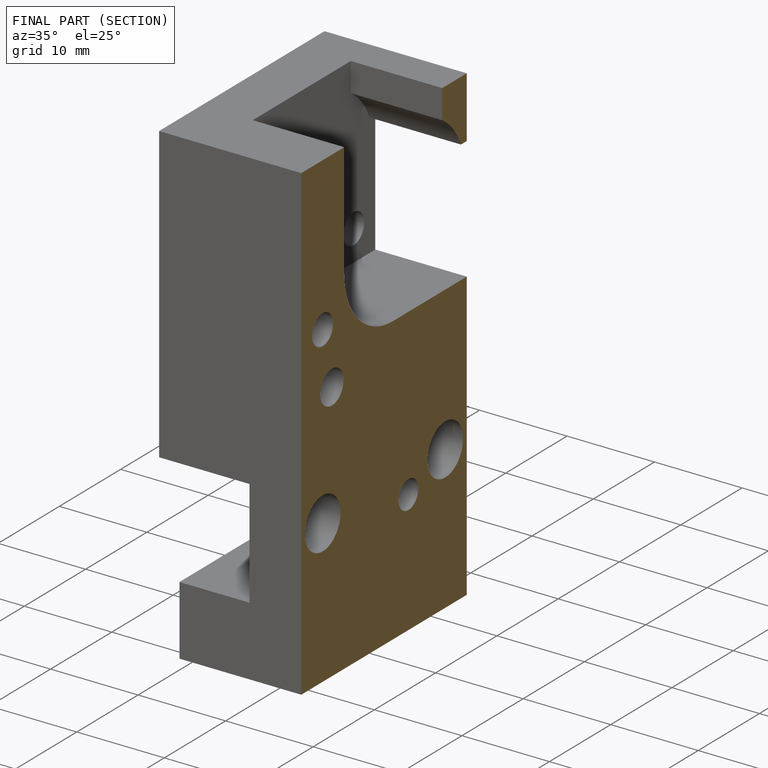
[diagram: finished part — half-section view (interior)]
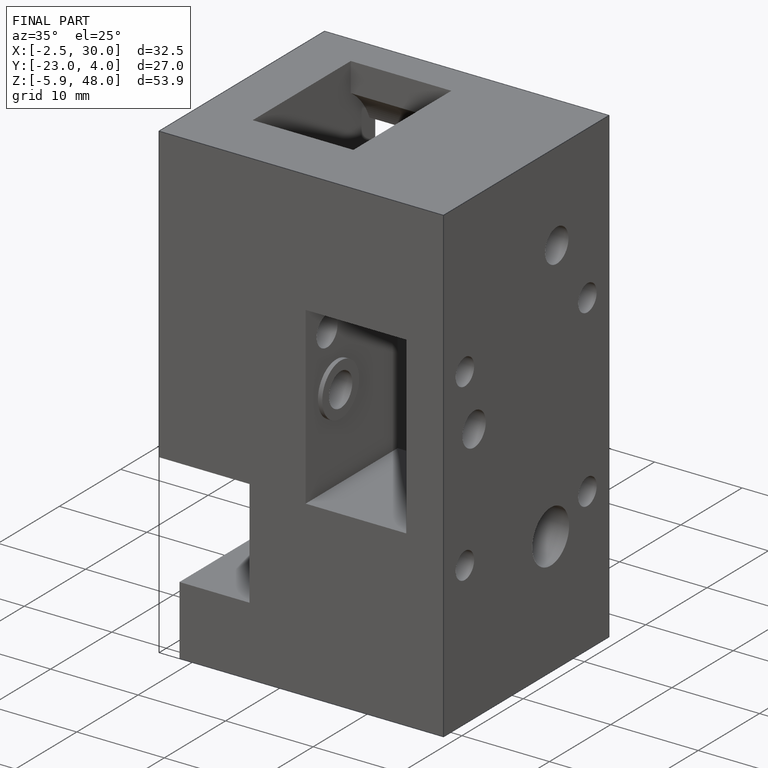
[diagram: finished part — iso view with bounding-box wireframe]
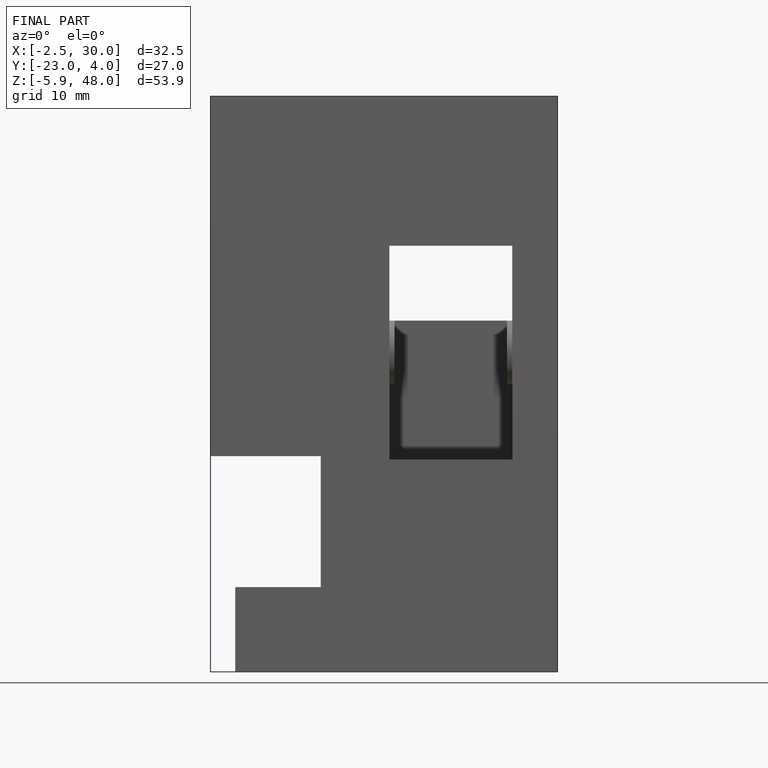
[diagram: finished part — front view with bounding-box wireframe]
